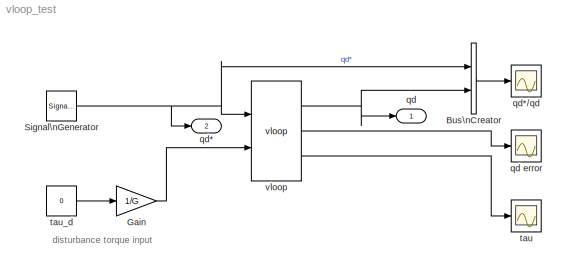
MODEL vloop_test
KIND model
CONFIG InitFcn = G = 107.815;
BLOCK [BusCreator] Bus\nCreator
  DisplayOption = bar
  Inputs = 2
  Ports = [2, 1]
  SID = 1
BLOCK [Gain] Gain
  Gain = 1/G
  OutDataType = fixdt(1, 16)
  OutDataTypeMode = Inherit via internal rule
  OutDataTypeStr = Inherit: Inherit via internal rule
  OutScaling = 2^0
  ParamDataTypeStr = Inherit: Inherit via internal rule
  ParameterDataType = fixdt(1, 16)
  ParameterDataTypeMode = Inherit via internal rule
  ParameterScaling = 2^0
  SID = 2
  SaturateOnIntegerOverflow = off
BLOCK [SignalGenerator] Signal\nGenerator
  Frequency = 2
  Ports = [0, 1]
  SID = 24
  WaveForm = sawtooth
BLOCK [Outport] qd
  IconDisplay = Port number
  OutDataType = fixdt(1, 16)
  OutScaling = 2^0
  SID = 22
BLOCK [Scope] qd error
  DataFormat = StructureWithTime
  Floating = off
  NumInputPorts = 1
  Ports = [1]
  SID = 4
  SampleTime = 0
  SaveName = ScopeData2
  TimeRange = 1
  YMax = 0.7
  YMin = 0
BLOCK [Outport] qd*
  IconDisplay = Port number
  OutDataType = fixdt(1, 16)
  OutScaling = 2^0
  Port = 2
  SID = 23
BLOCK [Scope] qd*//qd
  DataFormat = StructureWithTime
  Floating = off
  NumInputPorts = 1
  Ports = [1]
  SID = 5
  SampleTime = 0
  TimeRange = 1
  YMax = 90
  YMin = 0
  ZoomMode = xonly
BLOCK [Scope] tau
  DataFormat = StructureWithTime
  Floating = off
  NumInputPorts = 1
  Ports = [1]
  SID = 6
  SampleTime = 0
  SaveName = ScopeData1
  TimeRange = 1
  YMax = 0.175
  YMin = -0.1
BLOCK [Constant] tau_d
  OutDataType = fixdt(1, 16)
  OutScaling = 2^0
  SID = 7
  Value = 0
BLOCK [Reference] vloop  REF=control/vloop  (lib defined in mdl_593a49fa2885, mdl_69e7b38ea474, +35 more)
  B = 817e-6
  FunctionWithSeparateData = off
  J = 372e-6
  Ki = 0
  Km = 0.228
  Kv = 1
  Ports = [2, 3]
  RTWMemSecDataConstants = Inherit from model
  RTWMemSecDataInternal = Inherit from model
  RTWMemSecDataParameters = Inherit from model
  RTWMemSecFuncExecute = Inherit from model
  RTWMemSecFuncInitTerm = Inherit from model
  SID = 32
  ShowPortLabels = FromPortIcon
  SourceBlock = control/vloop
  SystemSampleTime = -1
  T = 0.001
  tau_max = 0.9
ANNOTATION (root): disturbance torque input
LINE Bus\nCreator:1 -> qd*//qd:1
LINE Gain:1 -> vloop:2
NET Signal\nGenerator:1 -> Bus\nCreator:1, qd*:1, vloop:1
LINE tau_d:1 -> Gain:1
NET vloop:1 -> Bus\nCreator:2, qd:1
LINE vloop:2 -> qd error:1
LINE vloop:3 -> tau:1
note: NET lines group one-source signal fan-out (src -> all destinations, sorted); 1:1 wires keep LINE
